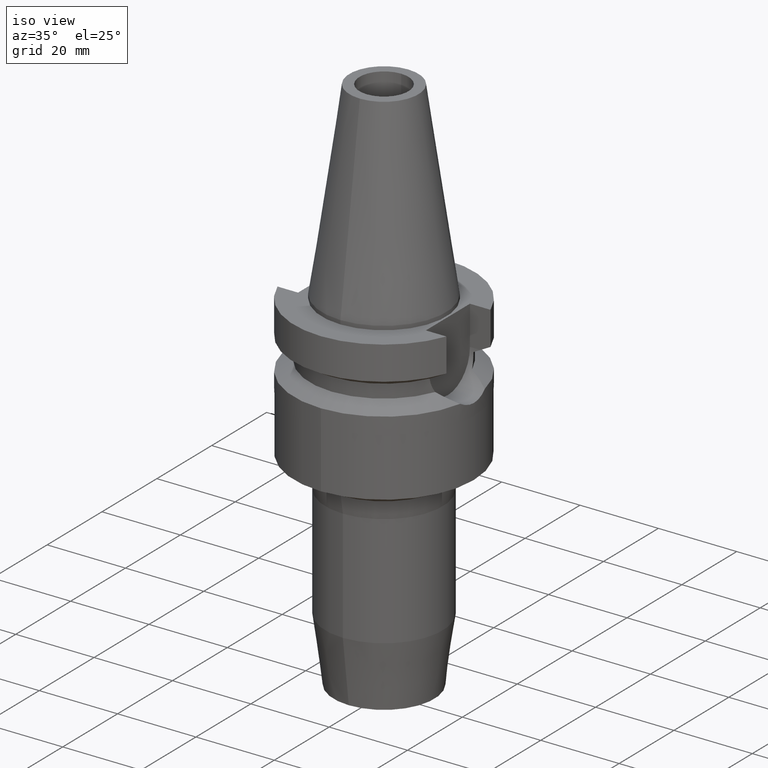
[diagram: clean part render]
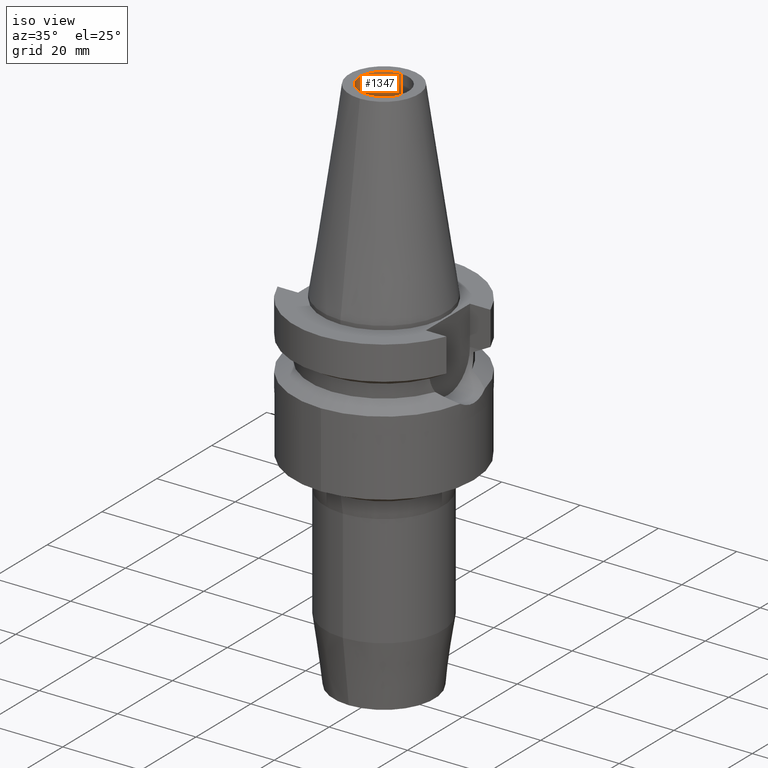
[diagram: same view with one face highlighted and labeled with its STEP entity id]
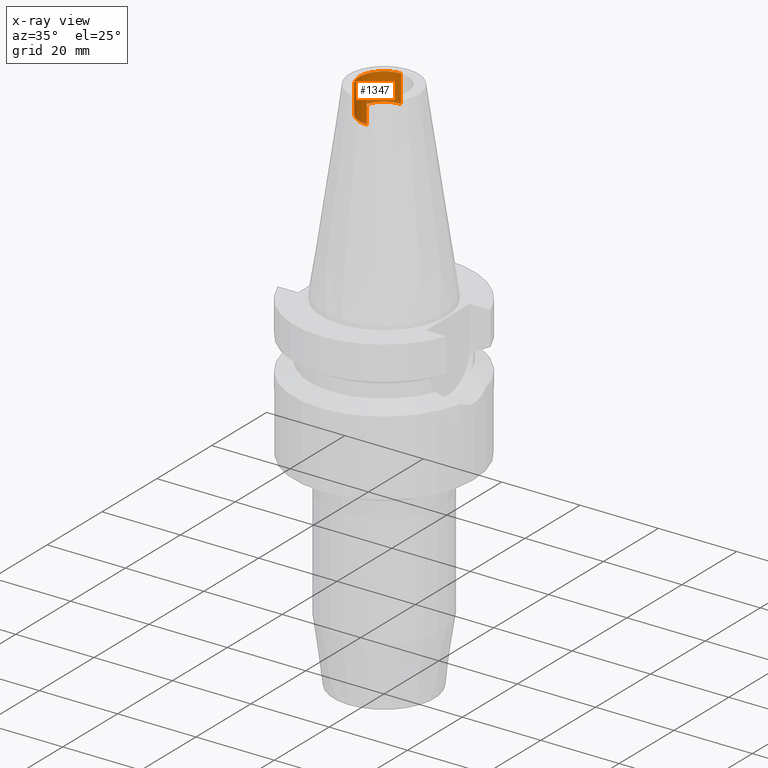
[diagram: x-ray of the same camera — body ghosted, the highlighted face saturated]
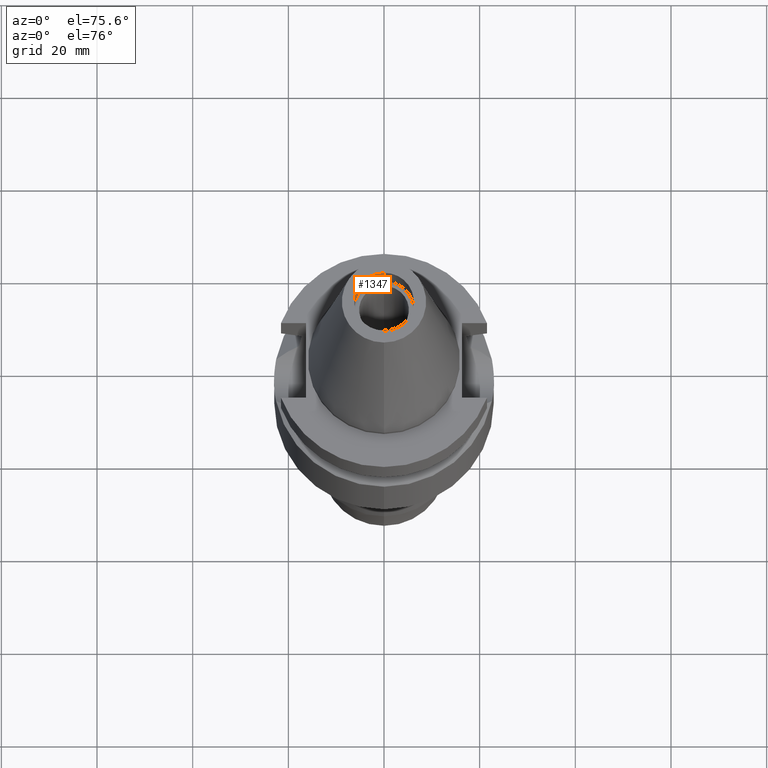
[diagram: same view with one face highlighted and labeled with its STEP entity id]
A machine part, iso view. The second image highlights one B-rep face of the part: STEP entity #1347.
The next image is the same camera in x-ray: the body ghosted, the highlighted face saturated — about 0% of this face is hidden behind the body in this view.
A second angle (auxiliary view) of the same face is appended — the face is thin or edge-on in the first view.
In plain terms, the highlighted cylindrical surface (edge-blend (fillet) strip) has radius 6.25 mm, axis along (0, 0, -1).
Its self-contained STEP definition (entity closure, byte-faithful):
#72=CARTESIAN_POINT('',(0.E0,1.902121408436E-14,4.84E1));
#73=DIRECTION('',(0.E0,0.E0,1.E0));
#74=DIRECTION('',(0.E0,1.E0,0.E0));
#75=AXIS2_PLACEMENT_3D('',#72,#73,#74);
#80=DIRECTION('',(0.E0,0.E0,1.E0));
#81=VECTOR('',#80,7.E0);
#82=CARTESIAN_POINT('',(0.E0,6.25E0,4.14E1));
#83=LINE('',#82,#81);
#87=DIRECTION('',(0.E0,0.E0,1.E0));
#88=VECTOR('',#87,7.E0);
#89=CARTESIAN_POINT('',(0.E0,-6.25E0,4.14E1));
#90=LINE('',#89,#88);
#94=CARTESIAN_POINT('',(0.E0,1.902121408436E-14,4.14E1));
#95=DIRECTION('',(0.E0,0.E0,-1.E0));
#96=DIRECTION('',(0.E0,-1.E0,0.E0));
#97=AXIS2_PLACEMENT_3D('',#94,#95,#96);
#1118=CARTESIAN_POINT('',(0.E0,-6.25E0,4.84E1));
#1119=CARTESIAN_POINT('',(0.E0,6.25E0,4.84E1));
#1120=VERTEX_POINT('',#1118);
#1121=VERTEX_POINT('',#1119);
#1122=CARTESIAN_POINT('',(0.E0,6.25E0,4.14E1));
#1123=VERTEX_POINT('',#1122);
#1124=CARTESIAN_POINT('',(0.E0,-6.25E0,4.14E1));
#1125=VERTEX_POINT('',#1124);
#1335=CARTESIAN_POINT('',(0.E0,1.902121408436E-14,5.532E1));
#1336=DIRECTION('',(0.E0,0.E0,-1.E0));
#1337=DIRECTION('',(0.E0,-1.E0,0.E0));
#1338=AXIS2_PLACEMENT_3D('',#1335,#1336,#1337);
#1339=CYLINDRICAL_SURFACE('',#1338,6.25E0);
#1340=ORIENTED_EDGE('',*,*,#1325,.F.);
#1342=ORIENTED_EDGE('',*,*,#1341,.F.);
#1343=ORIENTED_EDGE('',*,*,#1328,.T.);
#1344=ORIENTED_EDGE('',*,*,#1315,.F.);
#1345=EDGE_LOOP('',(#1340,#1342,#1343,#1344));
#1346=FACE_OUTER_BOUND('',#1345,.F.);
#76=CIRCLE('',#75,6.25E0);
#98=CIRCLE('',#97,6.25E0);
#1315=EDGE_CURVE('',#1121,#1120,#76,.T.);
#1325=EDGE_CURVE('',#1123,#1121,#83,.T.);
#1328=EDGE_CURVE('',#1125,#1120,#90,.T.);
#1341=EDGE_CURVE('',#1125,#1123,#98,.T.);
#1347=ADVANCED_FACE('',(#1346),#1339,.F.);